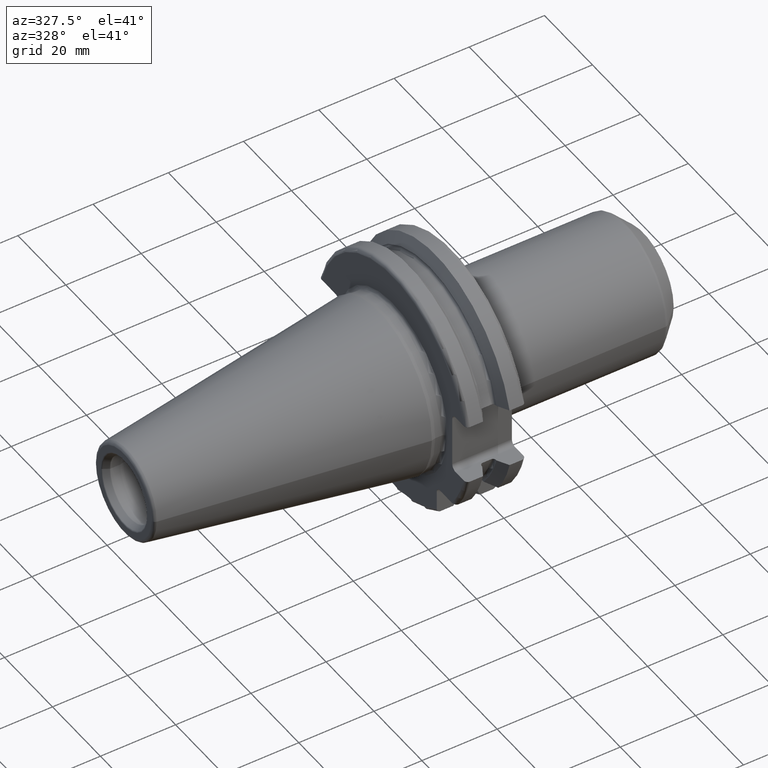
[diagram: clean part render]
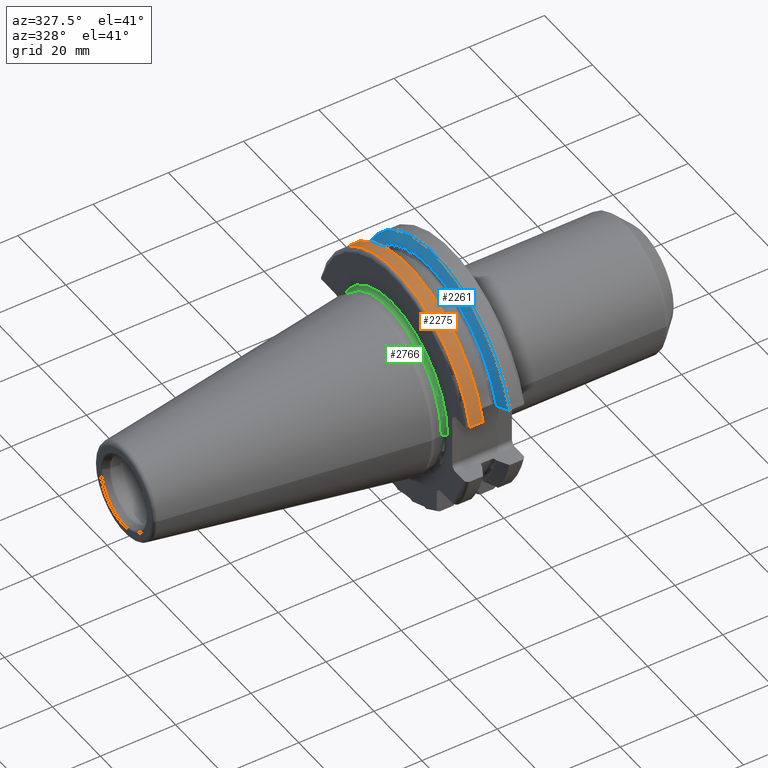
[diagram: same view with three faces highlighted in distinct colors, each labeled with its STEP entity id]
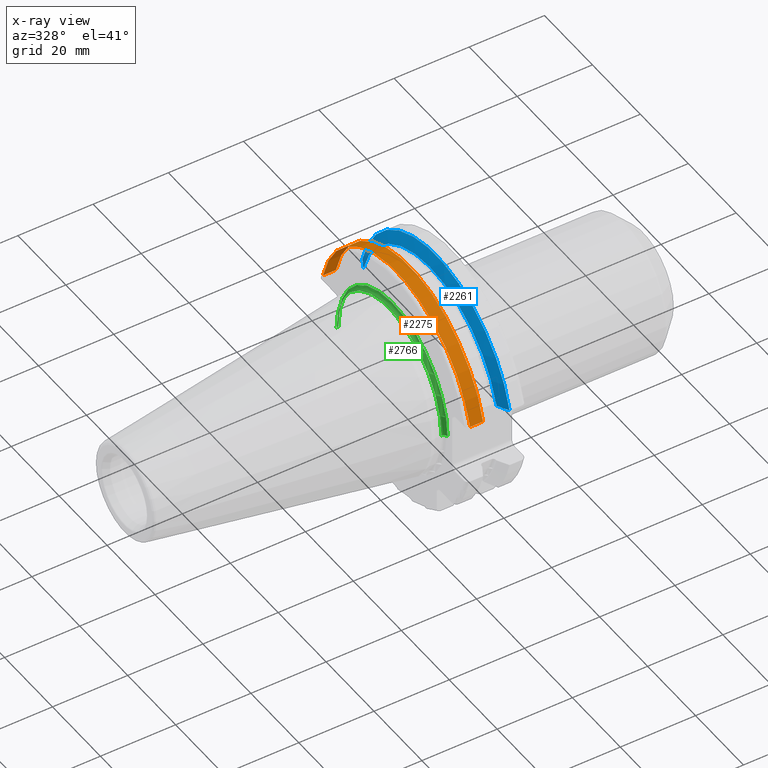
[diagram: x-ray of the same camera — body ghosted, the three highlighted faces saturated]
A machine part, auxiliary view with three faces highlighted in distinct colors.
The next image is the same camera in x-ray (body ghosted, the three faces saturated) — at least one of them is partly hidden behind the body in this view.
Their STEP definitions:

[orange] entity #2275 — the highlighted cylindrical surface (partial cylindrical patch) has radius 31.7625 mm, axis along (1, 0, 0).
#584=DIRECTION('',(1.E0,0.E0,0.E0));
#585=VECTOR('',#584,3.445946479578E0);
#586=CARTESIAN_POINT('',(4.2E0,3.071231684927E1,8.1E0));
#587=LINE('',#586,#585);
#588=CARTESIAN_POINT('',(7.645946479578E0,0.E0,0.E0));
#589=DIRECTION('',(1.E0,0.E0,0.E0));
#590=DIRECTION('',(0.E0,9.669363825036E-1,2.550177095632E-1));
#591=AXIS2_PLACEMENT_3D('',#588,#589,#590);
#593=DIRECTION('',(1.E0,0.E0,0.E0));
#594=VECTOR('',#593,3.445946479578E0);
#595=CARTESIAN_POINT('',(4.2E0,-3.071231684927E1,8.1E0));
#596=LINE('',#595,#594);
#615=CARTESIAN_POINT('',(7.645946479578E0,3.071231684927E1,8.1E0));
#627=CARTESIAN_POINT('',(7.645946479578E0,-3.071231684927E1,8.1E0));
#922=CARTESIAN_POINT('',(4.2E0,0.E0,0.E0));
#923=DIRECTION('',(1.E0,0.E0,0.E0));
#924=DIRECTION('',(0.E0,9.669363825036E-1,2.550177095632E-1));
#925=AXIS2_PLACEMENT_3D('',#922,#923,#924);
#1428=VERTEX_POINT('',#615);
#1429=VERTEX_POINT('',#627);
#1440=CARTESIAN_POINT('',(4.2E0,3.071231684927E1,8.1E0));
#1441=VERTEX_POINT('',#1440);
#1444=CARTESIAN_POINT('',(4.2E0,-3.071231684927E1,8.1E0));
#1445=VERTEX_POINT('',#1444);
#2262=CARTESIAN_POINT('',(-7.2615E1,0.E0,0.E0));
#2263=DIRECTION('',(1.E0,0.E0,0.E0));
#2264=DIRECTION('',(0.E0,-1.E0,0.E0));
#2265=AXIS2_PLACEMENT_3D('',#2262,#2263,#2264);
#2266=CYLINDRICAL_SURFACE('',#2265,3.17625E1);
#2267=ORIENTED_EDGE('',*,*,#1912,.T.);
#2269=ORIENTED_EDGE('',*,*,#2268,.T.);
#2270=ORIENTED_EDGE('',*,*,#1944,.F.);
#2272=ORIENTED_EDGE('',*,*,#2271,.F.);
#2273=EDGE_LOOP('',(#2267,#2269,#2270,#2272));
#2274=FACE_OUTER_BOUND('',#2273,.F.);
#2275=ADVANCED_FACE('',(#2274),#2266,.T.);
#592=CIRCLE('',#591,3.17625E1);
#926=CIRCLE('',#925,3.17625E1);
#1912=EDGE_CURVE('',#1441,#1428,#587,.T.);
#1944=EDGE_CURVE('',#1445,#1429,#596,.T.);
#2268=EDGE_CURVE('',#1428,#1429,#592,.T.);
#2271=EDGE_CURVE('',#1441,#1445,#926,.T.);

[blue] entity #2261 — the highlighted conical surface has half-angle 60 deg.
#565=CARTESIAN_POINT('',(1.470405352042E1,3.071231684927E1,8.1E0));
#566=CARTESIAN_POINT('',(1.451824513517E1,3.037948258059E1,8.1E0));
#567=CARTESIAN_POINT('',(1.415074718503E1,2.972048825911E1,8.1E0));
#568=CARTESIAN_POINT('',(1.361195207986E1,2.875212438619E1,8.1E0));
#569=CARTESIAN_POINT('',(1.326094199325E1,2.811971443922E1,8.1E0));
#570=CARTESIAN_POINT('',(1.30875E1,2.780681820245E1,8.1E0));
#572=CARTESIAN_POINT('',(1.30875E1,-2.780681820245E1,8.1E0));
#573=CARTESIAN_POINT('',(1.326086175289E1,-2.811956968242E1,8.1E0));
#574=CARTESIAN_POINT('',(1.361176448515E1,-2.875178670793E1,8.1E0));
#575=CARTESIAN_POINT('',(1.415055493375E1,-2.972014324708E1,8.1E0));
#576=CARTESIAN_POINT('',(1.451816260441E1,-3.037933474515E1,8.1E0));
#577=CARTESIAN_POINT('',(1.470405352042E1,-3.071231684927E1,8.1E0));
#579=CARTESIAN_POINT('',(1.30875E1,0.E0,0.E0));
#580=DIRECTION('',(1.E0,0.E0,0.E0));
#581=DIRECTION('',(0.E0,9.600957415706E-1,2.796715341576E-1));
#582=AXIS2_PLACEMENT_3D('',#579,#580,#581);
#610=CARTESIAN_POINT('',(1.470405352042E1,0.E0,0.E0));
#611=DIRECTION('',(1.E0,0.E0,0.E0));
#612=DIRECTION('',(0.E0,9.669363825036E-1,2.550177095632E-1));
#613=AXIS2_PLACEMENT_3D('',#610,#611,#612);
#1406=CARTESIAN_POINT('',(1.30875E1,2.780681820245E1,8.1E0));
#1407=VERTEX_POINT('',#1406);
#1416=CARTESIAN_POINT('',(1.30875E1,-2.780681820245E1,8.1E0));
#1417=VERTEX_POINT('',#1416);
#1426=VERTEX_POINT('',#565);
#1427=VERTEX_POINT('',#577);
#2249=CARTESIAN_POINT('',(1.389577676021E1,0.E0,0.E0));
#2250=DIRECTION('',(1.E0,0.E0,0.E0));
#2251=DIRECTION('',(0.E0,-1.E0,0.E0));
#2252=AXIS2_PLACEMENT_3D('',#2249,#2250,#2251);
#2253=CONICAL_SURFACE('',#2252,3.036252358474E1,6.E1);
#2254=ORIENTED_EDGE('',*,*,#1898,.F.);
#2256=ORIENTED_EDGE('',*,*,#2255,.T.);
#2257=ORIENTED_EDGE('',*,*,#1958,.F.);
#2258=ORIENTED_EDGE('',*,*,#2214,.F.);
#2259=EDGE_LOOP('',(#2254,#2256,#2257,#2258));
#2260=FACE_OUTER_BOUND('',#2259,.F.);
#2261=ADVANCED_FACE('',(#2260),#2253,.T.);
#571=B_SPLINE_CURVE_WITH_KNOTS('',3,(#565,#566,#567,#568,#569,#570),
.UNSPECIFIED.,.F.,.F.,(4,1,1,4),(0.E0,3.333333333333E-1,6.666666666667E-1,1.E0),
.UNSPECIFIED.);
#578=B_SPLINE_CURVE_WITH_KNOTS('',3,(#572,#573,#574,#575,#576,#577),
.UNSPECIFIED.,.F.,.F.,(4,1,1,4),(0.E0,3.333333333333E-1,6.666666666667E-1,1.E0),
.UNSPECIFIED.);
#583=CIRCLE('',#582,2.896254716948E1);
#614=CIRCLE('',#613,3.17625E1);
#1898=EDGE_CURVE('',#1426,#1407,#571,.T.);
#1958=EDGE_CURVE('',#1417,#1427,#578,.T.);
#2214=EDGE_CURVE('',#1407,#1417,#583,.T.);
#2255=EDGE_CURVE('',#1426,#1427,#614,.T.);

[green] entity #2766 — the highlighted toroidal blend (fillet) surface has major radius 22.875 mm and minor (blend) radius 1 mm.
#78=CARTESIAN_POINT('',(2.2E0,0.E0,0.E0));
#79=DIRECTION('',(1.E0,0.E0,0.E0));
#80=DIRECTION('',(0.E0,1.E0,0.E0));
#81=AXIS2_PLACEMENT_3D('',#78,#79,#80);
#107=CARTESIAN_POINT('',(2.2E0,2.2875E1,0.E0));
#108=DIRECTION('',(0.E0,0.E0,-1.E0));
#109=DIRECTION('',(9.457140159689E-1,-3.25E-1,0.E0));
#110=AXIS2_PLACEMENT_3D('',#107,#108,#109);
#112=CARTESIAN_POINT('',(2.2E0,-2.2875E1,0.E0));
#113=DIRECTION('',(0.E0,0.E0,1.E0));
#114=DIRECTION('',(1.E0,0.E0,0.E0));
#115=AXIS2_PLACEMENT_3D('',#112,#113,#114);
#1080=CARTESIAN_POINT('',(3.2E0,2.255E1,3.842281223440E0));
#1081=CARTESIAN_POINT('',(3.2E0,2.255E1,3.659346360345E0));
#1082=CARTESIAN_POINT('',(3.197183660273E0,2.255E1,3.293495674472E0));
#1083=CARTESIAN_POINT('',(3.187755287998E0,2.255E1,2.744832710969E0));
#1084=CARTESIAN_POINT('',(3.175889115457E0,2.255E1,2.196103113875E0));
#1085=CARTESIAN_POINT('',(3.163954665645E0,2.255E1,1.647211248391E0));
#1086=CARTESIAN_POINT('',(3.153915287595E0,2.255E1,1.098195325368E0));
#1087=CARTESIAN_POINT('',(3.147263292433E0,2.255E1,5.490722257557E-1));
#1088=CARTESIAN_POINT('',(3.145714015969E0,2.255E1,1.830242653455E-1));
#1089=CARTESIAN_POINT('',(3.145714015969E0,2.255E1,0.E0));
#1091=CARTESIAN_POINT('',(3.2E0,0.E0,0.E0));
#1092=DIRECTION('',(1.E0,0.E0,0.E0));
#1093=DIRECTION('',(0.E0,9.857923497268E-1,1.679685780739E-1));
#1094=AXIS2_PLACEMENT_3D('',#1091,#1092,#1093);
#1310=CARTESIAN_POINT('',(2.2E0,2.1875E1,0.E0));
#1312=VERTEX_POINT('',#1310);
#1314=CARTESIAN_POINT('',(3.2E0,-2.2875E1,0.E0));
#1315=CARTESIAN_POINT('',(2.2E0,-2.1875E1,0.E0));
#1316=VERTEX_POINT('',#1314);
#1317=VERTEX_POINT('',#1315);
#1456=VERTEX_POINT('',#1080);
#1457=VERTEX_POINT('',#1089);
#2754=CARTESIAN_POINT('',(2.2E0,0.E0,0.E0));
#2755=DIRECTION('',(1.E0,0.E0,0.E0));
#2756=DIRECTION('',(0.E0,-1.E0,0.E0));
#2757=AXIS2_PLACEMENT_3D('',#2754,#2755,#2756);
#2758=TOROIDAL_SURFACE('',#2757,2.2875E1,1.E0);
#2759=ORIENTED_EDGE('',*,*,#1732,.F.);
#2760=ORIENTED_EDGE('',*,*,#1826,.T.);
#2761=ORIENTED_EDGE('',*,*,#1712,.T.);
#2762=ORIENTED_EDGE('',*,*,#1681,.F.);
#2763=ORIENTED_EDGE('',*,*,#1709,.F.);
#2764=EDGE_LOOP('',(#2759,#2760,#2761,#2762,#2763));
#2765=FACE_OUTER_BOUND('',#2764,.F.);
#2766=ADVANCED_FACE('',(#2765),#2758,.F.);
#82=CIRCLE('',#81,2.1875E1);
#111=CIRCLE('',#110,1.E0);
#116=CIRCLE('',#115,1.E0);
#1090=B_SPLINE_CURVE_WITH_KNOTS('',3,(#1080,#1081,#1082,#1083,#1084,#1085,#1086,
#1087,#1088,#1089),.UNSPECIFIED.,.F.,.F.,(4,1,1,1,1,1,1,4),(0.E0,
1.428571428571E-1,2.857142857143E-1,4.285714285714E-1,5.714285714286E-1,
7.142857142857E-1,8.571428571429E-1,1.E0),.UNSPECIFIED.);
#1095=CIRCLE('',#1094,2.2875E1);
#1681=EDGE_CURVE('',#1312,#1317,#82,.T.);
#1709=EDGE_CURVE('',#1457,#1312,#111,.T.);
#1712=EDGE_CURVE('',#1316,#1317,#116,.T.);
#1732=EDGE_CURVE('',#1456,#1457,#1090,.T.);
#1826=EDGE_CURVE('',#1456,#1316,#1095,.T.);